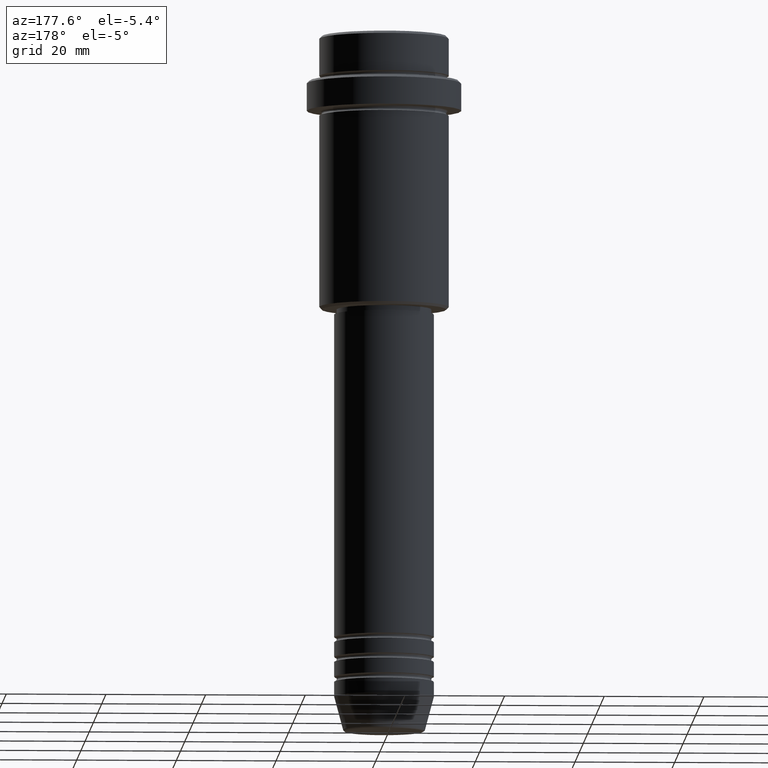
[diagram: clean part render]
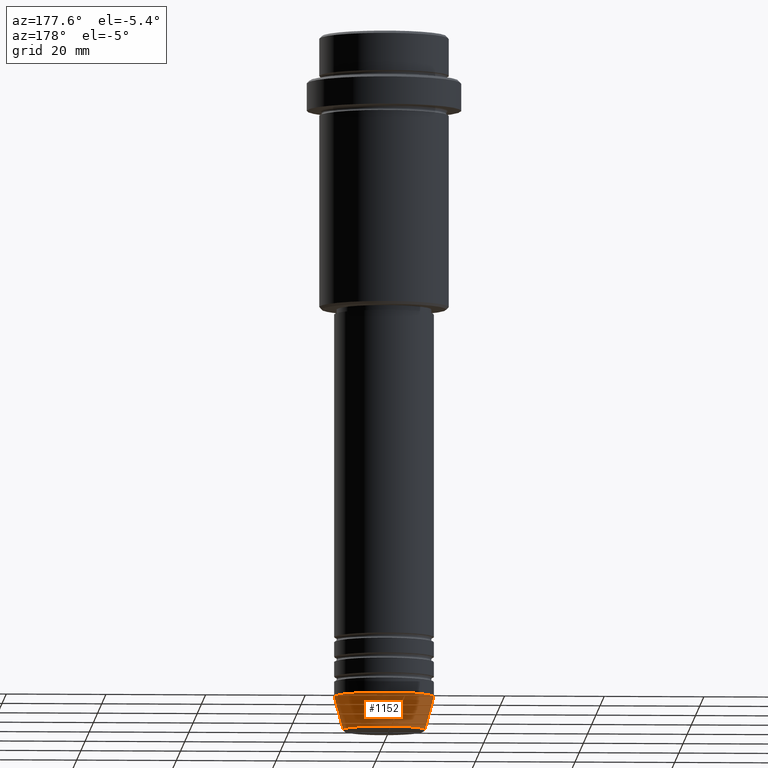
[diagram: same view with one face highlighted and labeled with its STEP entity id]
A machine part, auxiliary view. The second image highlights one B-rep face of the part: STEP entity #1152.
In plain terms, the highlighted conical surface has half-angle 15 deg.
Its self-contained STEP definition (entity closure, byte-faithful):
#19 = CARTESIAN_POINT ( 'NONE',  ( 0.000000000000000000, 0.000000000000000000, -133.0000000000000000 ) ) ;
#59 = VERTEX_POINT ( 'NONE', #260 ) ;
#64 = CARTESIAN_POINT ( 'NONE',  ( 8.223655072137189492, 0.000000000000000000, -139.6294095225512706 ) ) ;
#74 = ORIENTED_EDGE ( 'NONE', *, *, #1072, .T. ) ;
#82 = EDGE_CURVE ( 'NONE', #1124, #59, #501, .T. ) ;
#104 = CIRCLE ( 'NONE', #239, 10.00000000000000000 ) ;
#127 = CONICAL_SURFACE ( 'NONE', #1335, 10.00000000000000000, 0.2617993877991502405 ) ;
#135 = DIRECTION ( 'NONE',  ( -0.000000000000000000, -0.000000000000000000, 1.000000000000000000 ) ) ;
#220 = ORIENTED_EDGE ( 'NONE', *, *, #1257, .T. ) ;
#221 = ORIENTED_EDGE ( 'NONE', *, *, #1253, .F. ) ;
#239 = AXIS2_PLACEMENT_3D ( 'NONE', #1117, #135, #580 ) ;
#260 = CARTESIAN_POINT ( 'NONE',  ( 10.00000000000000000, 0.000000000000000000, -133.0000000000000000 ) ) ;
#317 = FACE_OUTER_BOUND ( 'NONE', #1215, .T. ) ;
#368 = CARTESIAN_POINT ( 'NONE',  ( 10.00000000000000000, 0.000000000000000000, -133.0000000000000000 ) ) ;
#471 = CARTESIAN_POINT ( 'NONE',  ( 0.000000000000000000, 0.000000000000000000, -139.6294095225512706 ) ) ;
#501 = LINE ( 'NONE', #368, #773 ) ;
#580 = DIRECTION ( 'NONE',  ( 1.000000000000000000, 0.000000000000000000, 0.000000000000000000 ) ) ;
#584 = DIRECTION ( 'NONE',  ( -0.000000000000000000, -0.000000000000000000, 1.000000000000000000 ) ) ;
#730 = CARTESIAN_POINT ( 'NONE',  ( -10.00000000000000000, 1.224646799147353256E-15, -133.0000000000000000 ) ) ;
#773 = VECTOR ( 'NONE', #934, 1000.000000000000114 ) ;
#777 = CIRCLE ( 'NONE', #1112, 8.223655072137189492 ) ;
#804 = CARTESIAN_POINT ( 'NONE',  ( -10.00000000000000000, 1.224646799147353256E-15, -133.0000000000000000 ) ) ;
#836 = DIRECTION ( 'NONE',  ( -0.2588190451025214611, 3.169619151431774186E-17, 0.9659258262890679791 ) ) ;
#903 = DIRECTION ( 'NONE',  ( -0.000000000000000000, -0.000000000000000000, 1.000000000000000000 ) ) ;
#934 = DIRECTION ( 'NONE',  ( 0.2588190451025214611, 0.000000000000000000, 0.9659258262890679791 ) ) ;
#935 = VERTEX_POINT ( 'NONE', #804 ) ;
#995 = VECTOR ( 'NONE', #836, 1000.000000000000114 ) ;
#1072 = EDGE_CURVE ( 'NONE', #1151, #935, #1273, .T. ) ;
#1112 = AXIS2_PLACEMENT_3D ( 'NONE', #471, #903, #1333 ) ;
#1116 = ORIENTED_EDGE ( 'NONE', *, *, #82, .F. ) ;
#1117 = CARTESIAN_POINT ( 'NONE',  ( 0.000000000000000000, 0.000000000000000000, -133.0000000000000000 ) ) ;
#1124 = VERTEX_POINT ( 'NONE', #64 ) ;
#1151 = VERTEX_POINT ( 'NONE', #1187 ) ;
#1152 = ADVANCED_FACE ( 'NONE', ( #317 ), #127, .T. ) ;
#1187 = CARTESIAN_POINT ( 'NONE',  ( -8.223655072137189492, 1.115877042642911856E-15, -139.6294095225512706 ) ) ;
#1215 = EDGE_LOOP ( 'NONE', ( #220, #74, #221, #1116 ) ) ;
#1253 = EDGE_CURVE ( 'NONE', #59, #935, #104, .T. ) ;
#1257 = EDGE_CURVE ( 'NONE', #1124, #1151, #777, .T. ) ;
#1273 = LINE ( 'NONE', #730, #995 ) ;
#1333 = DIRECTION ( 'NONE',  ( 1.000000000000000000, 0.000000000000000000, 0.000000000000000000 ) ) ;
#1335 = AXIS2_PLACEMENT_3D ( 'NONE', #19, #584, #1341 ) ;
#1341 = DIRECTION ( 'NONE',  ( 1.000000000000000000, 0.000000000000000000, 0.000000000000000000 ) ) ;